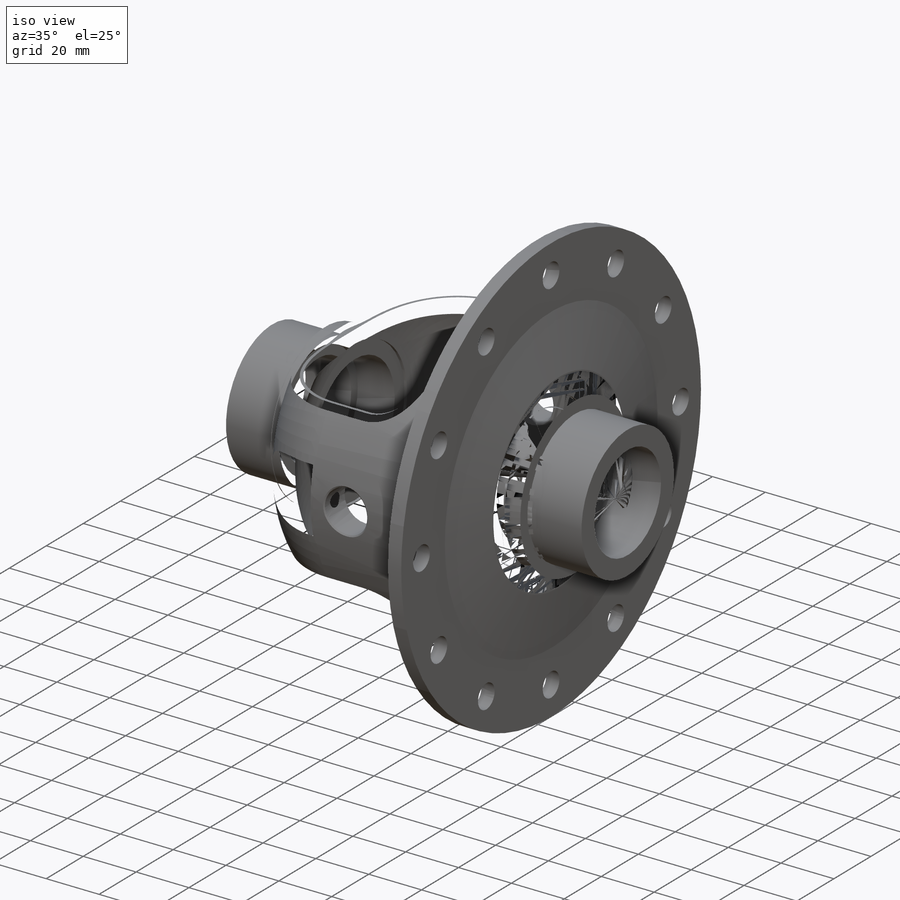
[diagram: iso view]
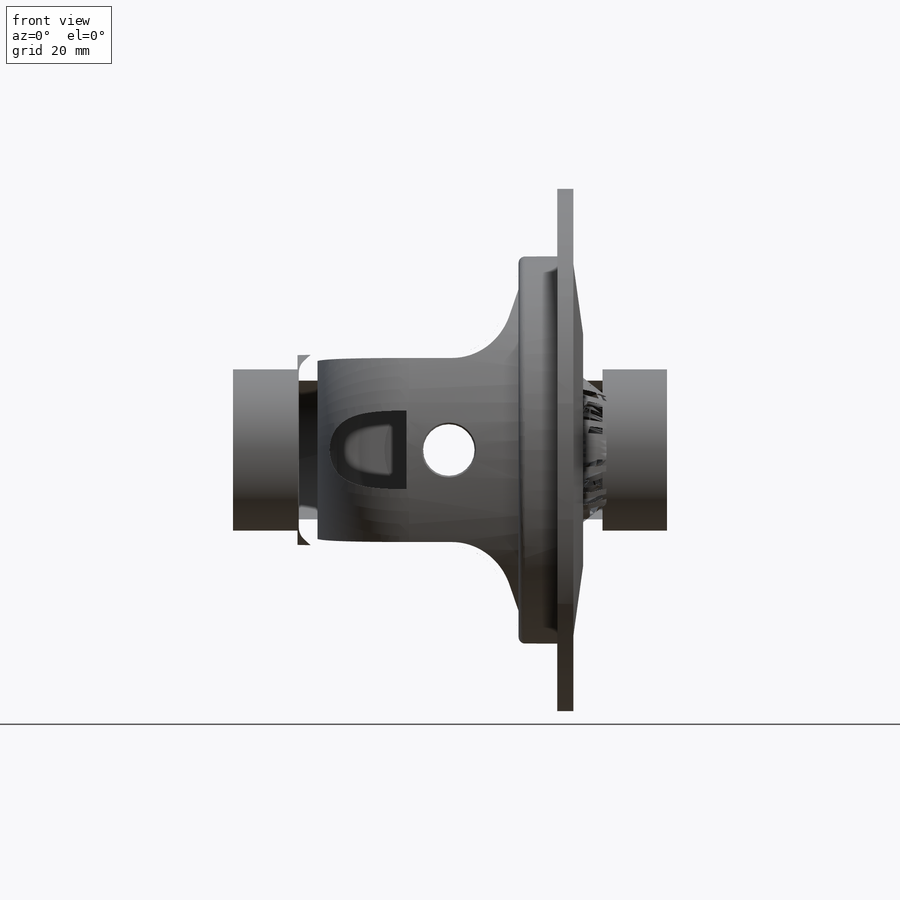
[diagram: front view]
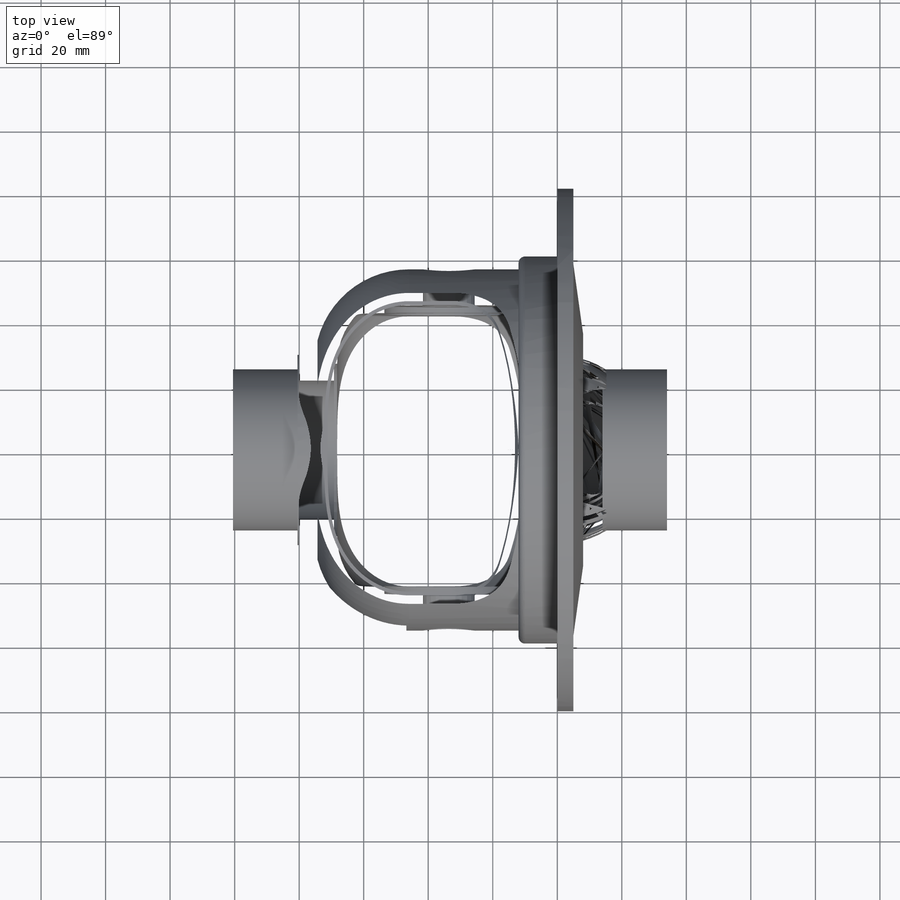
[diagram: top view]
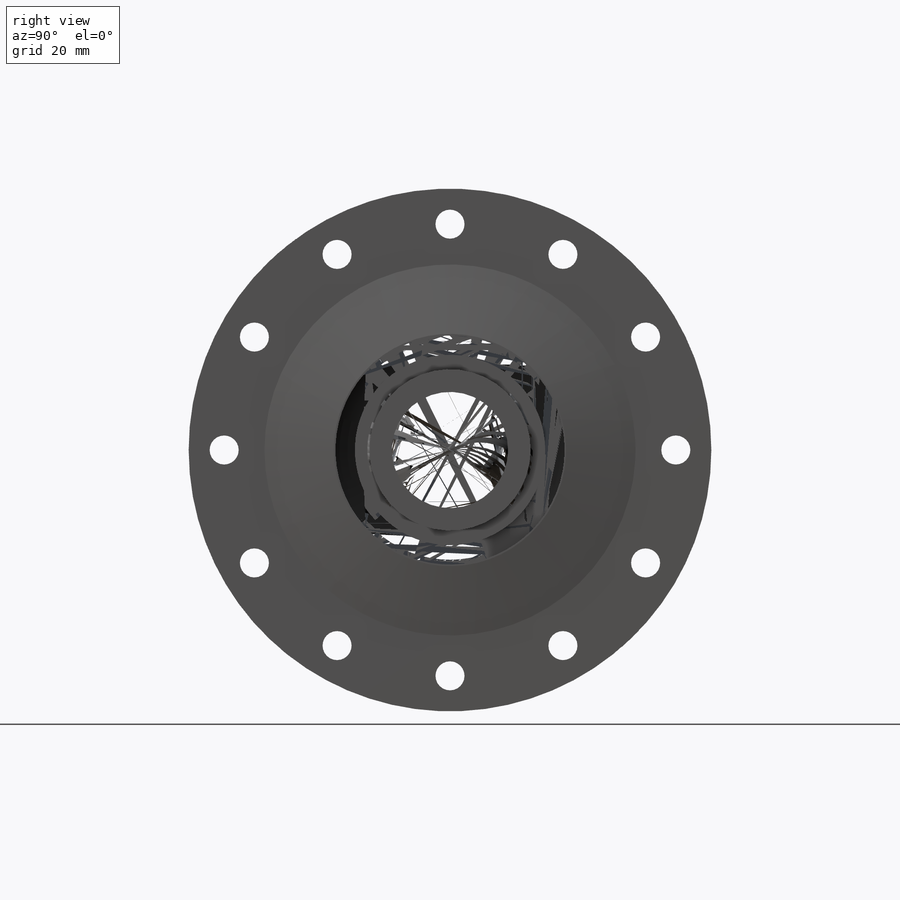
[diagram: right view]
SOLIDWORKS PART (.sldprt)
format: sldprt  version: not decoded by parser v0  size: 1,523,712 bytes
history: native  units: mm
features: sketch x7, plane x5, chamfer x4, pattern_circular x2, cut_revolve x2, material x1, revolve x1, cut_extrude x1, mirror x1, hole x1, extrude x1, fillet x1, thread x1 (+8 scaffold rows collapsed)
feature tree (36):
  scaffold x8  (default folders/planes/origin — collapsed)
  material  "Stop odlewniczy stali"
  plane  "Płaszczyzna przednia"
  plane  "Płaszczyzna górna"
  plane  "Płaszczyzna prawa"
  sketch  "Szkic1"  dims[c1.D20=30.0mm c1.D1=120.0mm c1.D2=160.0mm c1.D3=~166.598467mm c2.D2=162.0mm c2.D3=5.0mm c2.D4=12.0mm c2.D5=1.0mm c2.D6=23.0mm c2.D7=20.0mm c2.D8=10.0mm c2.D9=10.0mm c2.D10=7.0mm c2.D11=2.0mm c3.D9=30.0mm c3.D12=1.0mm c3.D13=~2.737135mm c3.D8=~71.221258mm c4.D13=8.0mm c4.D14=0.5mm c4.D15=0.5mm c4.D16=28.0mm c4.D17=43.0mm c4.D18=98.0mm c4.D19=110.0mm c4.D6=12.0mm c4.D9=50.0mm c4.D12=28.0mm c5.D9=50.0mm c5.D11=6.0mm c5.D7=20.0mm c5.D12=1.0mm c5.D14=1.0mm c5.D15=53.5mm c6.D11=59.0mm c6.D16=14.0mm c6.D21=14.0mm c6.D22=36.0mm c6.D6=6.0mm c6.D23=20.0mm c6.D5=3.5mm c6.D13=7.0mm c6.D19=72.0mm c6.D24=3.0mm c6.D25=115.0mm c6.D20=5.0mm c6.D26=~94.091697mm c7.D20=94.5mm]
  revolve  "Obrót1"  Angle=360deg
  sketch  "Szkic2"  dims[c1.D2=16.0mm c1.D1=18.0mm c1.D3=~3.403766mm c2.D3=70.0deg c2.D1=66.0mm c3.D1=90.0deg c4.D1=26.0mm]
  cut_extrude  "Wytnij-wyciągnięcie1"  Depth=120mm
  mirror  "Lustro1"
  hole  "Otwór pod śrubę M82"  [1 undecoded]
  sketch  "Szkic12"  dims[D1=70.0mm]
  sketch  "Szkic11"  dims[hole-wizard template sketch: 46 standard entries collapsed; hole parameters kept: c15.Średnica otworu=9.0mm c15.Głębokość otworu=6.0mm c15.D3=~14.816244mm c15.Kąt wiertła=118.0deg]
  pattern_circular  "Szyk kołowy1"  Count=12 Angle=360deg
  sketch  "Szkic5"  dims[D1=84.1448mm]
  extrude  "Dodanie-wyciągnięcie1"  Depth=10mm
  plane  "Płaszczyzna1"
  sketch  "Szkic7"  dims[D1=2.5mm D2=16.0mm D3=40.0mm D4=20.0mm]
  cut_revolve  "Wycięcie-obrót2"  Angle=360deg
  pattern_circular  "Lustro2"  [2 undecoded]
  fillet  "Zaokrąglenie2"  Radius=2mm
  chamfer  "Sfazowanie1"  Distance=0.5mm Angle=45deg
  chamfer  "Zaokrąglenie4"  Distance=3mm
  plane  "Płaszczyzna2"
  sketch  "Szkic10"  dims[c1.D3=30.0mm c1.D1=4.0mm c1.D2=1.0mm c2.D3=~1.452706mm c2.D1=1.0mm c2.D2=4.0mm c3.D3=15.0mm c3.D4=3.0mm c3.D5=16.0mm c3.D1=20.0mm c3.D2=1.0mm c4.D3=12.0mm c4.D4=5.0mm c4.D5=10.0mm]
  cut_revolve  "Wycięcie-obrót3"  [1 undecoded]
  thread  "Oznaczenie gwintu2"  Diameter=6mm  [1 undecoded]
  chamfer  "Zaokrąglenie6"  Distance=6mm
  chamfer  "Zaokrąglenie7"  Distance=2mm
decode coverage: 18 of 22 modeling features carry decoded parameters
note: ~ marks probable driven/reference dimensions
note: 5 parameter values undecoded
note: suppression state not decoded; provenance and decode notes live in map.json
